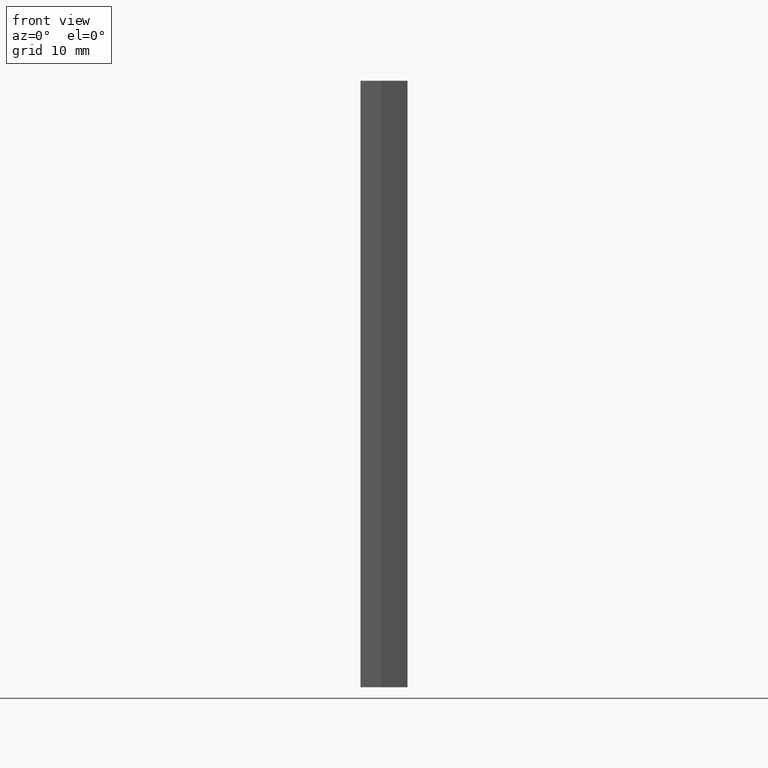
[diagram: clean part render]
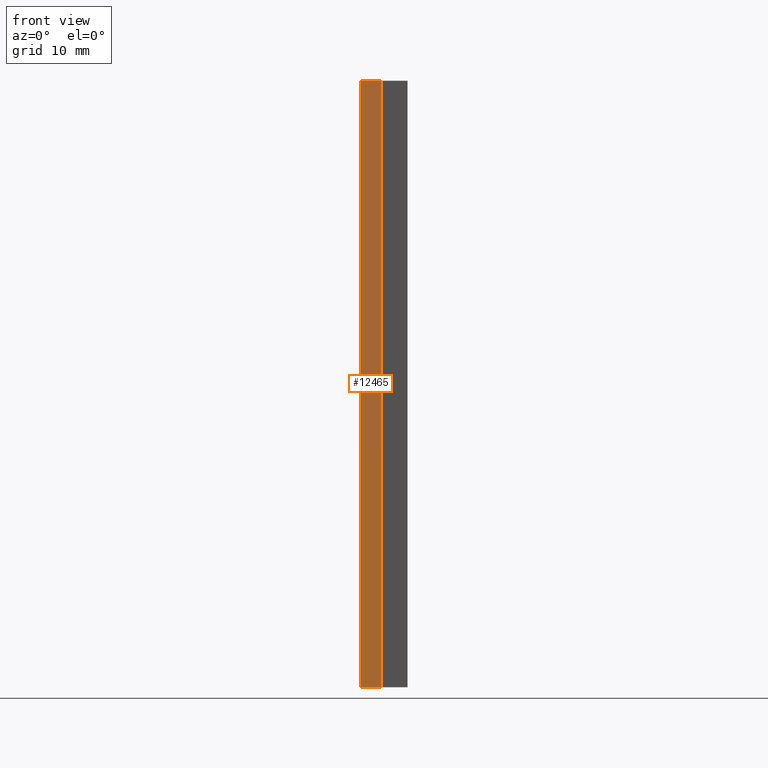
[diagram: same view with one face highlighted and labeled with its STEP entity id]
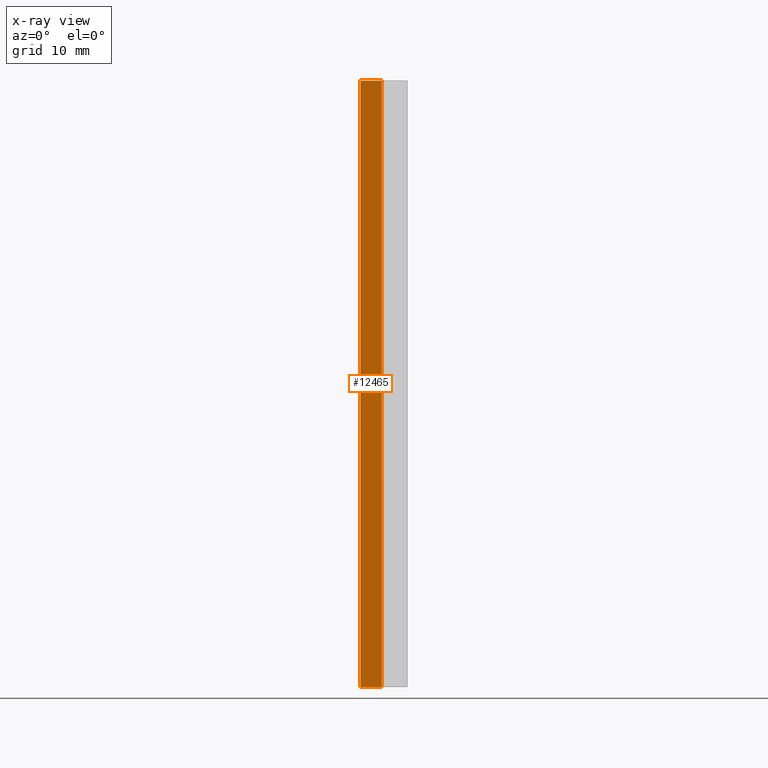
[diagram: x-ray of the same camera — body ghosted, the highlighted face saturated]
A machine part, front view. The second image highlights one B-rep face of the part: STEP entity #12465.
The next image is the same camera in x-ray: the body ghosted, the highlighted face saturated — about 0% of this face is hidden behind the body in this view.
In plain terms, the highlighted planar face has unit normal (0, 1, -0).
Its self-contained STEP definition (entity closure, byte-faithful):
#391 = CARTESIAN_POINT ( 'NONE',  ( -0.2999999999999929945, -25.00000000000000000, 37.35000000000000142 ) ) ;
#597 = EDGE_CURVE ( 'NONE', #13907, #6142, #16011, .T. ) ;
#849 = EDGE_CURVE ( 'NONE', #11940, #6142, #6100, .T. ) ;
#969 = VECTOR ( 'NONE', #11786, 1000.000000000000000 ) ;
#1377 = ORIENTED_EDGE ( 'NONE', *, *, #4751, .T. ) ;
#2476 = LINE ( 'NONE', #14261, #13820 ) ;
#2961 = CARTESIAN_POINT ( 'NONE',  ( -0.2999999999999929945, -25.00000000000000000, 37.35000000000000142 ) ) ;
#3706 = CARTESIAN_POINT ( 'NONE',  ( -0.2999999999999929945, -25.00000000000000000, 37.35000000000000142 ) ) ;
#3895 = CARTESIAN_POINT ( 'NONE',  ( -0.2999999999999929945, -25.00000000000000000, 37.35000000000000142 ) ) ;
#4238 = DIRECTION ( 'NONE',  ( 0.000000000000000000, 0.000000000000000000, 1.000000000000000000 ) ) ;
#4481 = EDGE_CURVE ( 'NONE', #10673, #13907, #15982, .T. ) ;
#4751 = EDGE_CURVE ( 'NONE', #10673, #11940, #2476, .T. ) ;
#5123 = FACE_OUTER_BOUND ( 'NONE', #6123, .T. ) ;
#6100 = LINE ( 'NONE', #12361, #15814 ) ;
#6123 = EDGE_LOOP ( 'NONE', ( #11714, #12743, #7016, #1377 ) ) ;
#6142 = VERTEX_POINT ( 'NONE', #9860 ) ;
#7016 = ORIENTED_EDGE ( 'NONE', *, *, #4481, .F. ) ;
#8076 = DIRECTION ( 'NONE',  ( 0.000000000000000000, 1.000000000000000000, -0.000000000000000000 ) ) ;
#8163 = CARTESIAN_POINT ( 'NONE',  ( -2.899999999999992806, -25.00000000000000000, -37.35000000000000142 ) ) ;
#9291 = PLANE ( 'NONE',  #14565 ) ;
#9860 = CARTESIAN_POINT ( 'NONE',  ( -0.2999999999999929945, -25.00000000000000000, -37.35000000000000142 ) ) ;
#10673 = VERTEX_POINT ( 'NONE', #16018 ) ;
#11085 = DIRECTION ( 'NONE',  ( 1.000000000000000000, -0.000000000000000000, -0.000000000000000000 ) ) ;
#11112 = DIRECTION ( 'NONE',  ( 1.000000000000000000, -0.000000000000000000, -0.000000000000000000 ) ) ;
#11415 = VECTOR ( 'NONE', #11085, 1000.000000000000000 ) ;
#11714 = ORIENTED_EDGE ( 'NONE', *, *, #849, .T. ) ;
#11786 = DIRECTION ( 'NONE',  ( -0.000000000000000000, -0.000000000000000000, -1.000000000000000000 ) ) ;
#11802 = DIRECTION ( 'NONE',  ( -0.000000000000000000, -0.000000000000000000, -1.000000000000000000 ) ) ;
#11940 = VERTEX_POINT ( 'NONE', #8163 ) ;
#12361 = CARTESIAN_POINT ( 'NONE',  ( -0.2999999999999929945, -25.00000000000000000, -37.35000000000000142 ) ) ;
#12465 = ADVANCED_FACE ( 'NONE', ( #5123 ), #9291, .F. ) ;
#12743 = ORIENTED_EDGE ( 'NONE', *, *, #597, .F. ) ;
#13820 = VECTOR ( 'NONE', #11802, 1000.000000000000000 ) ;
#13907 = VERTEX_POINT ( 'NONE', #3895 ) ;
#14261 = CARTESIAN_POINT ( 'NONE',  ( -2.899999999999992806, -25.00000000000000000, 37.35000000000000142 ) ) ;
#14565 = AXIS2_PLACEMENT_3D ( 'NONE', #2961, #8076, #4238 ) ;
#15814 = VECTOR ( 'NONE', #11112, 1000.000000000000000 ) ;
#15982 = LINE ( 'NONE', #3706, #11415 ) ;
#16011 = LINE ( 'NONE', #391, #969 ) ;
#16018 = CARTESIAN_POINT ( 'NONE',  ( -2.899999999999992806, -25.00000000000000000, 37.35000000000000142 ) ) ;